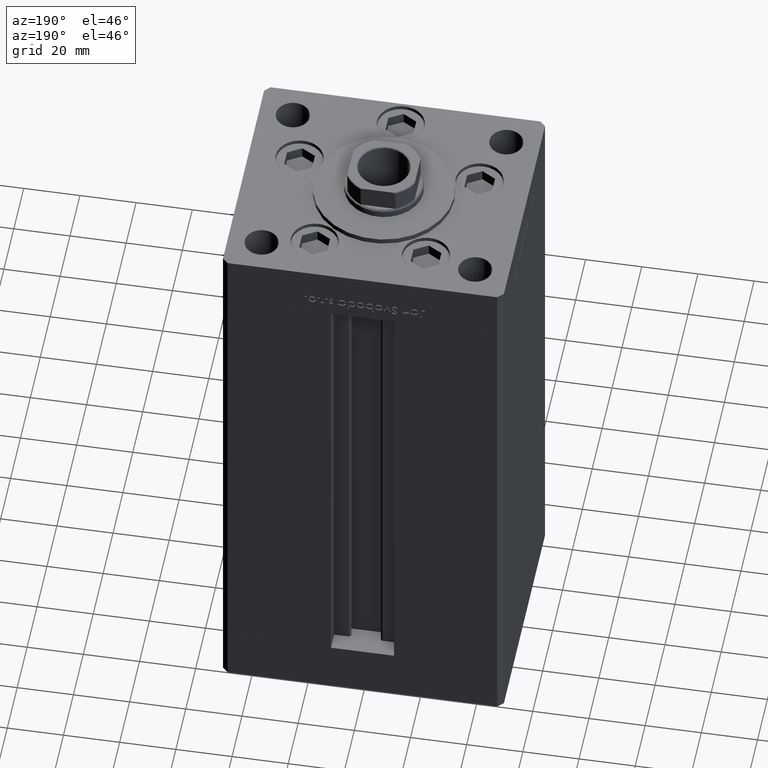
[diagram: clean part render]
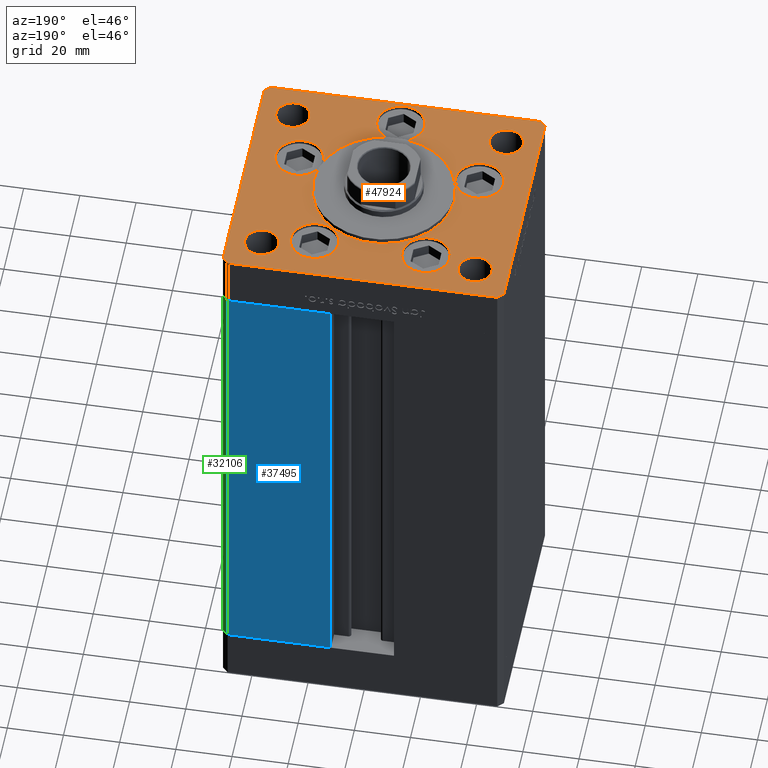
[diagram: same view with three faces highlighted in distinct colors, each labeled with its STEP entity id]
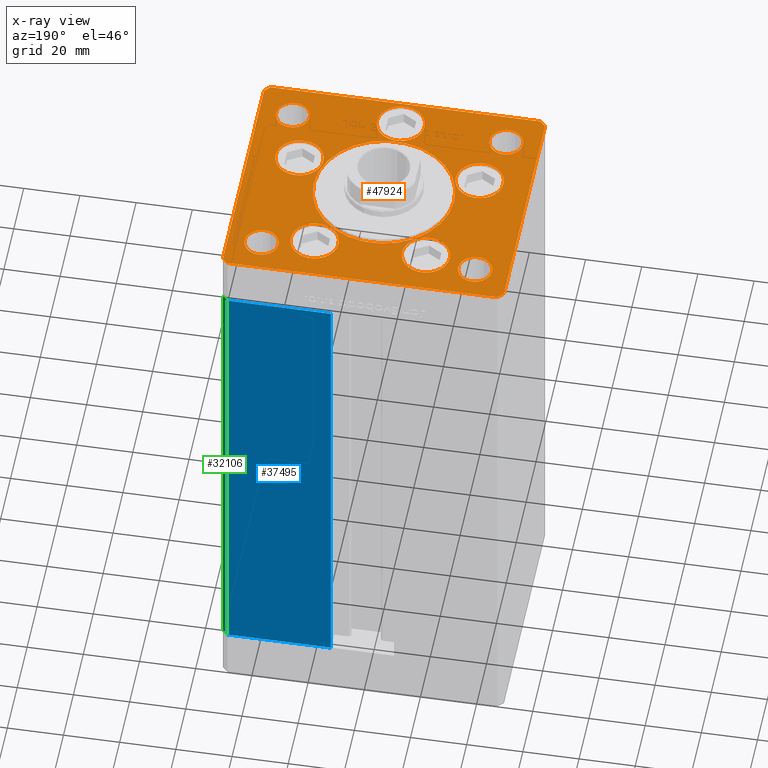
[diagram: x-ray of the same camera — body ghosted, the three highlighted faces saturated]
A machine part, auxiliary view with three faces highlighted in distinct colors.
The next image is the same camera in x-ray (body ghosted, the three faces saturated) — at least one of them is partly hidden behind the body in this view.
Their STEP definitions:

[orange] entity #47924 — the highlighted planar face has unit normal (0, 0, 1).
#397 = CARTESIAN_POINT ( 'NONE',  ( 44.00000000000000000, 31.50000000000000000, 0.000000000000000000 ) ) ;
#426 = EDGE_CURVE ( 'NONE', #8776, #39235, #8271, .T. ) ;
#605 = EDGE_CURVE ( 'NONE', #35790, #5081, #27096, .T. ) ;
#942 = ORIENTED_EDGE ( 'NONE', *, *, #26885, .T. ) ;
#1023 = ORIENTED_EDGE ( 'NONE', *, *, #39851, .T. ) ;
#1164 = VERTEX_POINT ( 'NONE', #9044 ) ;
#1406 = ORIENTED_EDGE ( 'NONE', *, *, #29473, .F. ) ;
#1708 = ORIENTED_EDGE ( 'NONE', *, *, #426, .F. ) ;
#1932 = CIRCLE ( 'NONE', #45741, 8.500000000000000000 ) ;
#2386 = CARTESIAN_POINT ( 'NONE',  ( -8.500000000000000000, -34.00000000000000000, 0.000000000000000000 ) ) ;
#2657 = CARTESIAN_POINT ( 'NONE',  ( -19.82068048781374969, 27.62499999999998934, 0.000000000000000000 ) ) ;
#2736 = CARTESIAN_POINT ( 'NONE',  ( 38.00000000000000711, -31.50000000000000711, 0.000000000000000000 ) ) ;
#3000 = CIRCLE ( 'NONE', #23226, 8.500000000000000000 ) ;
#3454 = CARTESIAN_POINT ( 'NONE',  ( -32.00000000000000000, -31.50000000000000711, 0.000000000000000000 ) ) ;
#3474 = AXIS2_PLACEMENT_3D ( 'NONE', #51333, #15696, #47380 ) ;
#3620 = FACE_BOUND ( 'NONE', #10200, .T. ) ;
#4100 = ORIENTED_EDGE ( 'NONE', *, *, #5937, .F. ) ;
#4367 = CARTESIAN_POINT ( 'NONE',  ( -40.55550741379015989, -11.33333333333332682, 0.000000000000000000 ) ) ;
#4425 = CARTESIAN_POINT ( 'NONE',  ( 50.00000000000000000, -41.49999999999992895, 0.000000000000000000 ) ) ;
#4560 = ORIENTED_EDGE ( 'NONE', *, *, #34063, .F. ) ;
#4686 = VERTEX_POINT ( 'NONE', #43376 ) ;
#4774 = CARTESIAN_POINT ( 'NONE',  ( -28.32068048781375325, 27.62499999999998934, 0.000000000000000000 ) ) ;
#5021 = DIRECTION ( 'NONE',  ( 0.000000000000000000, 1.000000000000000000, 0.000000000000000000 ) ) ;
#5081 = VERTEX_POINT ( 'NONE', #43831 ) ;
#5084 = CARTESIAN_POINT ( 'NONE',  ( -48.00000000000000711, -43.50000000000002842, 0.000000000000000000 ) ) ;
#5331 = VECTOR ( 'NONE', #21126, 1000.000000000000114 ) ;
#5367 = AXIS2_PLACEMENT_3D ( 'NONE', #21654, #5823, #9774 ) ;
#5469 = CARTESIAN_POINT ( 'NONE',  ( -50.00000000000000711, 41.49999999999999289, 0.000000000000000000 ) ) ;
#5823 = DIRECTION ( 'NONE',  ( 0.000000000000000000, 0.000000000000000000, 1.000000000000000000 ) ) ;
#5937 = EDGE_CURVE ( 'NONE', #4686, #31064, #30321, .T. ) ;
#6008 = DIRECTION ( 'NONE',  ( 1.000000000000000000, 0.000000000000000000, 0.000000000000000000 ) ) ;
#6073 = CARTESIAN_POINT ( 'NONE',  ( -11.32068048781375147, 27.62499999999998934, 0.000000000000000000 ) ) ;
#6125 = VECTOR ( 'NONE', #22325, 1000.000000000000000 ) ;
#6402 = VERTEX_POINT ( 'NONE', #45296 ) ;
#6717 = DIRECTION ( 'NONE',  ( 0.000000000000000000, 0.000000000000000000, 1.000000000000000000 ) ) ;
#6813 = FACE_OUTER_BOUND ( 'NONE', #49025, .T. ) ;
#7151 = ORIENTED_EDGE ( 'NONE', *, *, #29794, .F. ) ;
#7339 = CARTESIAN_POINT ( 'NONE',  ( -32.05550741379015989, -11.33333333333332860, 0.000000000000000000 ) ) ;
#7480 = EDGE_CURVE ( 'NONE', #19307, #47485, #17734, .T. ) ;
#8271 = CIRCLE ( 'NONE', #22577, 6.000000000000005329 ) ;
#8464 = AXIS2_PLACEMENT_3D ( 'NONE', #29646, #8571, #37587 ) ;
#8571 = DIRECTION ( 'NONE',  ( 0.000000000000000000, 0.000000000000000000, 1.000000000000000000 ) ) ;
#8572 = DIRECTION ( 'NONE',  ( 0.000000000000000000, 0.000000000000000000, 1.000000000000000000 ) ) ;
#8776 = VERTEX_POINT ( 'NONE', #3454 ) ;
#8980 = LINE ( 'NONE', #41167, #13126 ) ;
#9007 = CIRCLE ( 'NONE', #30039, 25.00000000000000000 ) ;
#9044 = CARTESIAN_POINT ( 'NONE',  ( -48.00000000000000711, -43.50000000000002842, 0.000000000000000000 ) ) ;
#9347 = CARTESIAN_POINT ( 'NONE',  ( 28.32068048781375325, 27.62499999999998934, 0.000000000000000000 ) ) ;
#9378 = CARTESIAN_POINT ( 'NONE',  ( -38.00000000000000000, 31.50000000000000000, 0.000000000000000000 ) ) ;
#9726 = ORIENTED_EDGE ( 'NONE', *, *, #49720, .F. ) ;
#9774 = DIRECTION ( 'NONE',  ( 1.000000000000000000, 0.000000000000000000, 0.000000000000000000 ) ) ;
#10160 = CARTESIAN_POINT ( 'NONE',  ( 38.00000000000000000, 31.50000000000000000, 0.000000000000000000 ) ) ;
#10200 = EDGE_LOOP ( 'NONE', ( #4560, #24324 ) ) ;
#10311 = CARTESIAN_POINT ( 'NONE',  ( 32.00000000000000000, -31.50000000000000711, 0.000000000000000000 ) ) ;
#10320 = ORIENTED_EDGE ( 'NONE', *, *, #14500, .F. ) ;
#10410 = DIRECTION ( 'NONE',  ( -0.000000000000000000, -0.000000000000000000, -1.000000000000000000 ) ) ;
#10599 = DIRECTION ( 'NONE',  ( 1.000000000000000000, 0.000000000000000000, 0.000000000000000000 ) ) ;
#10663 = CARTESIAN_POINT ( 'NONE',  ( 38.00000000000000711, -31.50000000000000711, 0.000000000000000000 ) ) ;
#10756 = FACE_BOUND ( 'NONE', #51179, .T. ) ;
#10787 = VECTOR ( 'NONE', #34773, 999.9999999999998863 ) ;
#11145 = DIRECTION ( 'NONE',  ( 1.000000000000000000, 0.000000000000000000, 0.000000000000000000 ) ) ;
#11167 = DIRECTION ( 'NONE',  ( 0.000000000000000000, 0.000000000000000000, 1.000000000000000000 ) ) ;
#11375 = VERTEX_POINT ( 'NONE', #17781 ) ;
#11472 = CARTESIAN_POINT ( 'NONE',  ( -25.00000000000000000, -6.938893903907228378E-15, 0.000000000000000000 ) ) ;
#12034 = ORIENTED_EDGE ( 'NONE', *, *, #23094, .F. ) ;
#12067 = EDGE_CURVE ( 'NONE', #17550, #37522, #24569, .T. ) ;
#12168 = CARTESIAN_POINT ( 'NONE',  ( 19.82068048781374969, 27.62499999999998934, 0.000000000000000000 ) ) ;
#12187 = VECTOR ( 'NONE', #18286, 1000.000000000000000 ) ;
#12358 = CIRCLE ( 'NONE', #41891, 8.500000000000000000 ) ;
#12631 = DIRECTION ( 'NONE',  ( -1.000000000000000000, 0.000000000000000000, 0.000000000000000000 ) ) ;
#12789 = CARTESIAN_POINT ( 'NONE',  ( -50.00000000000000711, 41.49999999999999289, 0.000000000000000000 ) ) ;
#13062 = CIRCLE ( 'NONE', #49266, 8.500000000000000000 ) ;
#13126 = VECTOR ( 'NONE', #5021, 1000.000000000000000 ) ;
#14005 = ORIENTED_EDGE ( 'NONE', *, *, #27210, .F. ) ;
#14013 = ORIENTED_EDGE ( 'NONE', *, *, #38078, .F. ) ;
#14500 = EDGE_CURVE ( 'NONE', #21402, #25146, #37202, .T. ) ;
#14617 = CARTESIAN_POINT ( 'NONE',  ( -38.00000000000000711, -31.50000000000000711, 0.000000000000000000 ) ) ;
#14717 = FACE_BOUND ( 'NONE', #49700, .T. ) ;
#14916 = CARTESIAN_POINT ( 'NONE',  ( 11.32068048781375147, 27.62499999999998934, 0.000000000000000000 ) ) ;
#14919 = VERTEX_POINT ( 'NONE', #35246 ) ;
#14968 = DIRECTION ( 'NONE',  ( -0.000000000000000000, 0.000000000000000000, 1.000000000000000000 ) ) ;
#15421 = CIRCLE ( 'NONE', #38165, 5.999999999999998224 ) ;
#15455 = CIRCLE ( 'NONE', #25586, 8.500000000000000000 ) ;
#15465 = ORIENTED_EDGE ( 'NONE', *, *, #30924, .T. ) ;
#15634 = DIRECTION ( 'NONE',  ( 1.000000000000000000, 0.000000000000000000, 0.000000000000000000 ) ) ;
#15649 = CARTESIAN_POINT ( 'NONE',  ( -44.00000000000001421, -31.50000000000000711, 0.000000000000000000 ) ) ;
#15696 = DIRECTION ( 'NONE',  ( 0.000000000000000000, 0.000000000000000000, 1.000000000000000000 ) ) ;
#16041 = EDGE_LOOP ( 'NONE', ( #4100, #46380 ) ) ;
#16136 = CARTESIAN_POINT ( 'NONE',  ( -50.00000000000000000, -41.50000000000004263, 0.000000000000000000 ) ) ;
#16290 = LINE ( 'NONE', #47517, #41054 ) ;
#16298 = CIRCLE ( 'NONE', #50022, 6.000000000000005329 ) ;
#17174 = VECTOR ( 'NONE', #49297, 1000.000000000000000 ) ;
#17346 = DIRECTION ( 'NONE',  ( 0.000000000000000000, 0.000000000000000000, 1.000000000000000000 ) ) ;
#17540 = ORIENTED_EDGE ( 'NONE', *, *, #21993, .T. ) ;
#17550 = VERTEX_POINT ( 'NONE', #10311 ) ;
#17734 = CIRCLE ( 'NONE', #8464, 25.00000000000000000 ) ;
#17781 = CARTESIAN_POINT ( 'NONE',  ( 32.00000000000000000, 31.50000000000000000, 0.000000000000000000 ) ) ;
#18286 = DIRECTION ( 'NONE',  ( -0.7071067811865536790, -0.7071067811865414665, 0.000000000000000000 ) ) ;
#18407 = VERTEX_POINT ( 'NONE', #9347 ) ;
#18715 = AXIS2_PLACEMENT_3D ( 'NONE', #10160, #6717, #33899 ) ;
#18745 = DIRECTION ( 'NONE',  ( 1.000000000000000000, 0.000000000000000000, 0.000000000000000000 ) ) ;
#18823 = DIRECTION ( 'NONE',  ( -1.000000000000000000, 0.000000000000000000, 0.000000000000000000 ) ) ;
#18880 = CARTESIAN_POINT ( 'NONE',  ( 50.00000000000000000, 41.50000000000000711, 0.000000000000000000 ) ) ;
#18939 = FACE_BOUND ( 'NONE', #51908, .T. ) ;
#19202 = VERTEX_POINT ( 'NONE', #14916 ) ;
#19252 = ORIENTED_EDGE ( 'NONE', *, *, #39431, .F. ) ;
#19307 = VERTEX_POINT ( 'NONE', #11472 ) ;
#19533 = ORIENTED_EDGE ( 'NONE', *, *, #605, .T. ) ;
#19675 = DIRECTION ( 'NONE',  ( 1.000000000000000000, 0.000000000000000000, 0.000000000000000000 ) ) ;
#19742 = CARTESIAN_POINT ( 'NONE',  ( 23.55550741379015633, -11.33333333333332682, 0.000000000000000000 ) ) ;
#19892 = VERTEX_POINT ( 'NONE', #19742 ) ;
#20579 = CARTESIAN_POINT ( 'NONE',  ( -38.00000000000000711, -31.50000000000000711, 0.000000000000000000 ) ) ;
#20722 = CARTESIAN_POINT ( 'NONE',  ( 8.500000000000000000, -34.00000000000000000, 0.000000000000000000 ) ) ;
#20839 = EDGE_LOOP ( 'NONE', ( #41932, #14013 ) ) ;
#21024 = VERTEX_POINT ( 'NONE', #30509 ) ;
#21126 = DIRECTION ( 'NONE',  ( 0.7071067811865474617, 0.7071067811865474617, 0.000000000000000000 ) ) ;
#21343 = LINE ( 'NONE', #37688, #17174 ) ;
#21402 = VERTEX_POINT ( 'NONE', #4774 ) ;
#21654 = CARTESIAN_POINT ( 'NONE',  ( 32.05550741379015989, -11.33333333333332860, 0.000000000000000000 ) ) ;
#21990 = EDGE_CURVE ( 'NONE', #47083, #11375, #38947, .T. ) ;
#21993 = EDGE_CURVE ( 'NONE', #37522, #17550, #39771, .T. ) ;
#22325 = DIRECTION ( 'NONE',  ( 8.360113137237620037E-17, -1.000000000000000000, 0.000000000000000000 ) ) ;
#22451 = VERTEX_POINT ( 'NONE', #34229 ) ;
#22577 = AXIS2_PLACEMENT_3D ( 'NONE', #20579, #24522, #11145 ) ;
#22974 = VERTEX_POINT ( 'NONE', #16136 ) ;
#23050 = DIRECTION ( 'NONE',  ( 1.000000000000000000, 0.000000000000000000, 0.000000000000000000 ) ) ;
#23094 = EDGE_CURVE ( 'NONE', #25146, #21402, #1932, .T. ) ;
#23226 = AXIS2_PLACEMENT_3D ( 'NONE', #7339, #50878, #51394 ) ;
#24324 = ORIENTED_EDGE ( 'NONE', *, *, #43571, .F. ) ;
#24522 = DIRECTION ( 'NONE',  ( 0.000000000000000000, 0.000000000000000000, 1.000000000000000000 ) ) ;
#24569 = CIRCLE ( 'NONE', #50594, 6.000000000000005329 ) ;
#24580 = VERTEX_POINT ( 'NONE', #4425 ) ;
#24934 = VERTEX_POINT ( 'NONE', #20722 ) ;
#25074 = LINE ( 'NONE', #41182, #5331 ) ;
#25146 = VERTEX_POINT ( 'NONE', #6073 ) ;
#25586 = AXIS2_PLACEMENT_3D ( 'NONE', #46756, #26934, #10599 ) ;
#25749 = VERTEX_POINT ( 'NONE', #2386 ) ;
#26698 = CARTESIAN_POINT ( 'NONE',  ( -48.00000000000000000, 43.49999999999997158, 0.000000000000000000 ) ) ;
#26794 = CARTESIAN_POINT ( 'NONE',  ( 0.000000000000000000, -6.938893903907228378E-15, 0.000000000000000000 ) ) ;
#26885 = EDGE_CURVE ( 'NONE', #49769, #22974, #46080, .T. ) ;
#26890 = DIRECTION ( 'NONE',  ( 1.000000000000000000, 0.000000000000000000, 0.000000000000000000 ) ) ;
#26903 = DIRECTION ( 'NONE',  ( 0.000000000000000000, 0.000000000000000000, 1.000000000000000000 ) ) ;
#26934 = DIRECTION ( 'NONE',  ( 0.000000000000000000, 0.000000000000000000, 1.000000000000000000 ) ) ;
#26941 = ORIENTED_EDGE ( 'NONE', *, *, #29132, .T. ) ;
#27090 = DIRECTION ( 'NONE',  ( 1.000000000000000000, 0.000000000000000000, 0.000000000000000000 ) ) ;
#27096 = LINE ( 'NONE', #51384, #10787 ) ;
#27166 = ORIENTED_EDGE ( 'NONE', *, *, #36210, .T. ) ;
#27210 = EDGE_CURVE ( 'NONE', #11375, #47083, #37292, .T. ) ;
#27709 = EDGE_CURVE ( 'NONE', #1164, #49162, #29591, .T. ) ;
#28255 = DIRECTION ( 'NONE',  ( 0.000000000000000000, 0.000000000000000000, 1.000000000000000000 ) ) ;
#28697 = EDGE_CURVE ( 'NONE', #49162, #24580, #25074, .T. ) ;
#28841 = AXIS2_PLACEMENT_3D ( 'NONE', #10663, #46048, #50010 ) ;
#29015 = CARTESIAN_POINT ( 'NONE',  ( 44.00000000000001421, -31.50000000000000711, 0.000000000000000000 ) ) ;
#29132 = EDGE_CURVE ( 'NONE', #6402, #21024, #15421, .T. ) ;
#29171 = EDGE_CURVE ( 'NONE', #39235, #8776, #16298, .T. ) ;
#29473 = EDGE_CURVE ( 'NONE', #25749, #24934, #15455, .T. ) ;
#29591 = LINE ( 'NONE', #5084, #49950 ) ;
#29646 = CARTESIAN_POINT ( 'NONE',  ( 0.000000000000000000, -6.938893903907228378E-15, 0.000000000000000000 ) ) ;
#29794 = EDGE_CURVE ( 'NONE', #22451, #19892, #49154, .T. ) ;
#30039 = AXIS2_PLACEMENT_3D ( 'NONE', #26794, #39210, #19675 ) ;
#30091 = CARTESIAN_POINT ( 'NONE',  ( 25.00000000000000000, -3.877276906038844941E-15, 0.000000000000000000 ) ) ;
#30321 = CIRCLE ( 'NONE', #35378, 8.500000000000000000 ) ;
#30509 = CARTESIAN_POINT ( 'NONE',  ( -44.00000000000000000, 31.50000000000000000, 0.000000000000000000 ) ) ;
#30795 = FACE_BOUND ( 'NONE', #16041, .T. ) ;
#30897 = ORIENTED_EDGE ( 'NONE', *, *, #28697, .T. ) ;
#30924 = EDGE_CURVE ( 'NONE', #5081, #14919, #21343, .T. ) ;
#31064 = VERTEX_POINT ( 'NONE', #4367 ) ;
#31570 = FACE_BOUND ( 'NONE', #37240, .T. ) ;
#32686 = CARTESIAN_POINT ( 'NONE',  ( -38.00000000000000000, 31.50000000000000000, 0.000000000000000000 ) ) ;
#33858 = EDGE_CURVE ( 'NONE', #14919, #49769, #43328, .T. ) ;
#33899 = DIRECTION ( 'NONE',  ( 1.000000000000000000, 0.000000000000000000, 0.000000000000000000 ) ) ;
#34063 = EDGE_CURVE ( 'NONE', #18407, #19202, #13062, .T. ) ;
#34229 = CARTESIAN_POINT ( 'NONE',  ( 40.55550741379015989, -11.33333333333332860, 0.000000000000000000 ) ) ;
#34404 = DIRECTION ( 'NONE',  ( -1.000000000000000000, 0.000000000000000000, 0.000000000000000000 ) ) ;
#34767 = FACE_BOUND ( 'NONE', #44095, .T. ) ;
#34773 = DIRECTION ( 'NONE',  ( -0.7071067811865512365, 0.7071067811865439090, 0.000000000000000000 ) ) ;
#35020 = PLANE ( 'NONE',  #37782 ) ;
#35118 = CIRCLE ( 'NONE', #46957, 8.500000000000000000 ) ;
#35246 = CARTESIAN_POINT ( 'NONE',  ( -48.00000000000000000, 43.49999999999997158, 0.000000000000000000 ) ) ;
#35378 = AXIS2_PLACEMENT_3D ( 'NONE', #39050, #42502, #26890 ) ;
#35790 = VERTEX_POINT ( 'NONE', #18880 ) ;
#36210 = EDGE_CURVE ( 'NONE', #24580, #35790, #8980, .T. ) ;
#36713 = DIRECTION ( 'NONE',  ( 0.000000000000000000, 0.000000000000000000, 1.000000000000000000 ) ) ;
#36781 = EDGE_CURVE ( 'NONE', #31064, #4686, #3000, .T. ) ;
#36970 = CIRCLE ( 'NONE', #38666, 8.500000000000000000 ) ;
#36982 = CARTESIAN_POINT ( 'NONE',  ( 19.82068048781374969, 27.62499999999998934, 0.000000000000000000 ) ) ;
#37202 = CIRCLE ( 'NONE', #3474, 8.500000000000000000 ) ;
#37240 = EDGE_LOOP ( 'NONE', ( #26941, #49028 ) ) ;
#37292 = CIRCLE ( 'NONE', #48232, 5.999999999999998224 ) ;
#37522 = VERTEX_POINT ( 'NONE', #29015 ) ;
#37587 = DIRECTION ( 'NONE',  ( 1.000000000000000000, 0.000000000000000000, 0.000000000000000000 ) ) ;
#37688 = CARTESIAN_POINT ( 'NONE',  ( 47.99999999999999289, 43.50000000000000000, 0.000000000000000000 ) ) ;
#37782 = AXIS2_PLACEMENT_3D ( 'NONE', #51120, #14968, #27090 ) ;
#38078 = EDGE_CURVE ( 'NONE', #47485, #19307, #9007, .T. ) ;
#38165 = AXIS2_PLACEMENT_3D ( 'NONE', #9378, #10410, #34404 ) ;
#38371 = CARTESIAN_POINT ( 'NONE',  ( 48.00000000000000711, -43.49999999999992184, 0.000000000000000000 ) ) ;
#38666 = AXIS2_PLACEMENT_3D ( 'NONE', #38694, #17346, #6008 ) ;
#38694 = CARTESIAN_POINT ( 'NONE',  ( 32.05550741379015989, -11.33333333333332860, 0.000000000000000000 ) ) ;
#38815 = ORIENTED_EDGE ( 'NONE', *, *, #29171, .F. ) ;
#38947 = CIRCLE ( 'NONE', #18715, 5.999999999999998224 ) ;
#39050 = CARTESIAN_POINT ( 'NONE',  ( -32.05550741379015989, -11.33333333333332860, 0.000000000000000000 ) ) ;
#39210 = DIRECTION ( 'NONE',  ( 0.000000000000000000, 0.000000000000000000, 1.000000000000000000 ) ) ;
#39235 = VERTEX_POINT ( 'NONE', #15649 ) ;
#39431 = EDGE_CURVE ( 'NONE', #24934, #25749, #35118, .T. ) ;
#39771 = CIRCLE ( 'NONE', #28841, 6.000000000000005329 ) ;
#39851 = EDGE_CURVE ( 'NONE', #22974, #1164, #16290, .T. ) ;
#41052 = AXIS2_PLACEMENT_3D ( 'NONE', #32686, #48524, #12631 ) ;
#41054 = VECTOR ( 'NONE', #43551, 1000.000000000000000 ) ;
#41167 = CARTESIAN_POINT ( 'NONE',  ( 50.00000000000000000, -41.49999999999992895, 0.000000000000000000 ) ) ;
#41182 = CARTESIAN_POINT ( 'NONE',  ( 48.00000000000000711, -43.49999999999992184, 0.000000000000000000 ) ) ;
#41781 = EDGE_LOOP ( 'NONE', ( #7151, #9726 ) ) ;
#41891 = AXIS2_PLACEMENT_3D ( 'NONE', #36982, #36713, #43391 ) ;
#41932 = ORIENTED_EDGE ( 'NONE', *, *, #7480, .F. ) ;
#42171 = ORIENTED_EDGE ( 'NONE', *, *, #27709, .T. ) ;
#42502 = DIRECTION ( 'NONE',  ( 0.000000000000000000, 0.000000000000000000, 1.000000000000000000 ) ) ;
#42627 = ORIENTED_EDGE ( 'NONE', *, *, #12067, .T. ) ;
#43328 = LINE ( 'NONE', #26698, #12187 ) ;
#43376 = CARTESIAN_POINT ( 'NONE',  ( -23.55550741379015989, -11.33333333333332860, 0.000000000000000000 ) ) ;
#43391 = DIRECTION ( 'NONE',  ( 1.000000000000000000, 0.000000000000000000, 0.000000000000000000 ) ) ;
#43551 = DIRECTION ( 'NONE',  ( 0.7071067811865487940, -0.7071067811865463515, 0.000000000000000000 ) ) ;
#43571 = EDGE_CURVE ( 'NONE', #19202, #18407, #12358, .T. ) ;
#43831 = CARTESIAN_POINT ( 'NONE',  ( 47.99999999999999289, 43.50000000000000000, 0.000000000000000000 ) ) ;
#43861 = EDGE_CURVE ( 'NONE', #21024, #6402, #49445, .T. ) ;
#44095 = EDGE_LOOP ( 'NONE', ( #12034, #10320 ) ) ;
#44631 = DIRECTION ( 'NONE',  ( 1.000000000000000000, 0.000000000000000000, 0.000000000000000000 ) ) ;
#45296 = CARTESIAN_POINT ( 'NONE',  ( -32.00000000000000000, 31.50000000000000000, 0.000000000000000000 ) ) ;
#45713 = DIRECTION ( 'NONE',  ( 1.000000000000000000, 1.156482317317871331E-15, 0.000000000000000000 ) ) ;
#45741 = AXIS2_PLACEMENT_3D ( 'NONE', #2657, #26903, #18745 ) ;
#46048 = DIRECTION ( 'NONE',  ( -0.000000000000000000, -0.000000000000000000, -1.000000000000000000 ) ) ;
#46080 = LINE ( 'NONE', #5469, #6125 ) ;
#46380 = ORIENTED_EDGE ( 'NONE', *, *, #36781, .F. ) ;
#46572 = EDGE_LOOP ( 'NONE', ( #49499, #14005 ) ) ;
#46756 = CARTESIAN_POINT ( 'NONE',  ( 0.000000000000000000, -34.00000000000000000, 0.000000000000000000 ) ) ;
#46898 = ORIENTED_EDGE ( 'NONE', *, *, #33858, .T. ) ;
#46911 = FACE_BOUND ( 'NONE', #46572, .T. ) ;
#46957 = AXIS2_PLACEMENT_3D ( 'NONE', #48873, #52050, #15634 ) ;
#47083 = VERTEX_POINT ( 'NONE', #397 ) ;
#47380 = DIRECTION ( 'NONE',  ( 1.000000000000000000, 0.000000000000000000, 0.000000000000000000 ) ) ;
#47485 = VERTEX_POINT ( 'NONE', #30091 ) ;
#47517 = CARTESIAN_POINT ( 'NONE',  ( -50.00000000000000000, -41.50000000000004263, 0.000000000000000000 ) ) ;
#47924 = ADVANCED_FACE ( 'NONE', ( #51639, #34767, #3620, #50865, #14717, #30795, #31570, #46911, #10756, #6813, #18939 ), #35020, .T. ) ;
#48232 = AXIS2_PLACEMENT_3D ( 'NONE', #48402, #8572, #49196 ) ;
#48402 = CARTESIAN_POINT ( 'NONE',  ( 38.00000000000000000, 31.50000000000000000, 0.000000000000000000 ) ) ;
#48524 = DIRECTION ( 'NONE',  ( -0.000000000000000000, -0.000000000000000000, -1.000000000000000000 ) ) ;
#48873 = CARTESIAN_POINT ( 'NONE',  ( 0.000000000000000000, -34.00000000000000000, 0.000000000000000000 ) ) ;
#49025 = EDGE_LOOP ( 'NONE', ( #1023, #42171, #30897, #27166, #19533, #15465, #46898, #942 ) ) ;
#49028 = ORIENTED_EDGE ( 'NONE', *, *, #43861, .T. ) ;
#49154 = CIRCLE ( 'NONE', #5367, 8.500000000000000000 ) ;
#49162 = VERTEX_POINT ( 'NONE', #38371 ) ;
#49196 = DIRECTION ( 'NONE',  ( 1.000000000000000000, 0.000000000000000000, 0.000000000000000000 ) ) ;
#49266 = AXIS2_PLACEMENT_3D ( 'NONE', #12168, #28255, #44631 ) ;
#49297 = DIRECTION ( 'NONE',  ( -1.000000000000000000, -2.891205793294678326E-16, 0.000000000000000000 ) ) ;
#49445 = CIRCLE ( 'NONE', #41052, 5.999999999999998224 ) ;
#49499 = ORIENTED_EDGE ( 'NONE', *, *, #21990, .F. ) ;
#49700 = EDGE_LOOP ( 'NONE', ( #19252, #1406 ) ) ;
#49720 = EDGE_CURVE ( 'NONE', #19892, #22451, #36970, .T. ) ;
#49769 = VERTEX_POINT ( 'NONE', #12789 ) ;
#49950 = VECTOR ( 'NONE', #45713, 1000.000000000000000 ) ;
#50010 = DIRECTION ( 'NONE',  ( -1.000000000000000000, 0.000000000000000000, 0.000000000000000000 ) ) ;
#50022 = AXIS2_PLACEMENT_3D ( 'NONE', #14617, #11167, #23050 ) ;
#50594 = AXIS2_PLACEMENT_3D ( 'NONE', #2736, #51527, #18823 ) ;
#50865 = FACE_BOUND ( 'NONE', #41781, .T. ) ;
#50878 = DIRECTION ( 'NONE',  ( 0.000000000000000000, 0.000000000000000000, 1.000000000000000000 ) ) ;
#51120 = CARTESIAN_POINT ( 'NONE',  ( 0.000000000000000000, 0.000000000000000000, 0.000000000000000000 ) ) ;
#51179 = EDGE_LOOP ( 'NONE', ( #1708, #38815 ) ) ;
#51333 = CARTESIAN_POINT ( 'NONE',  ( -19.82068048781374969, 27.62499999999998934, 0.000000000000000000 ) ) ;
#51384 = CARTESIAN_POINT ( 'NONE',  ( 50.00000000000000000, 41.50000000000000711, 0.000000000000000000 ) ) ;
#51394 = DIRECTION ( 'NONE',  ( 1.000000000000000000, 0.000000000000000000, 0.000000000000000000 ) ) ;
#51527 = DIRECTION ( 'NONE',  ( -0.000000000000000000, -0.000000000000000000, -1.000000000000000000 ) ) ;
#51639 = FACE_BOUND ( 'NONE', #20839, .T. ) ;
#51908 = EDGE_LOOP ( 'NONE', ( #17540, #42627 ) ) ;
#52050 = DIRECTION ( 'NONE',  ( 0.000000000000000000, 0.000000000000000000, 1.000000000000000000 ) ) ;

[blue] entity #37495 — the highlighted planar face has unit normal (0, -1, 0).
#789 = VECTOR ( 'NONE', #12099, 1000.000000000000000 ) ;
#806 = PLANE ( 'NONE',  #19048 ) ;
#3423 = CARTESIAN_POINT ( 'NONE',  ( 11.24999999999999822, 43.50000000000000000, 0.000000000000000000 ) ) ;
#3640 = EDGE_CURVE ( 'NONE', #23854, #21509, #48250, .T. ) ;
#4145 = LINE ( 'NONE', #20514, #45136 ) ;
#4418 = DIRECTION ( 'NONE',  ( -0.000000000000000000, -0.000000000000000000, -1.000000000000000000 ) ) ;
#4467 = CARTESIAN_POINT ( 'NONE',  ( -11.24999999999999822, 43.50000000000000000, 168.5000000000000000 ) ) ;
#4708 = VECTOR ( 'NONE', #5728, 1000.000000000000000 ) ;
#5296 = DIRECTION ( 'NONE',  ( 0.000000000000000000, -1.000000000000000000, 0.000000000000000000 ) ) ;
#5728 = DIRECTION ( 'NONE',  ( -1.000000000000000000, 0.000000000000000000, 0.000000000000000000 ) ) ;
#9162 = CARTESIAN_POINT ( 'NONE',  ( 48.00000000000000711, 43.50000000000000000, 0.000000000000000000 ) ) ;
#10537 = EDGE_CURVE ( 'NONE', #14641, #23854, #20043, .T. ) ;
#12099 = DIRECTION ( 'NONE',  ( 1.000000000000000000, 0.000000000000000000, 0.000000000000000000 ) ) ;
#14641 = VERTEX_POINT ( 'NONE', #35694 ) ;
#16570 = CARTESIAN_POINT ( 'NONE',  ( 48.00000000000000711, 43.50000000000000000, 168.5000000000000000 ) ) ;
#16886 = CARTESIAN_POINT ( 'NONE',  ( -11.24999999999999822, 43.50000000000000000, 168.5000000000000000 ) ) ;
#19048 = AXIS2_PLACEMENT_3D ( 'NONE', #16886, #5296, #49604 ) ;
#20043 = LINE ( 'NONE', #3423, #43100 ) ;
#20514 = CARTESIAN_POINT ( 'NONE',  ( 48.00000000000000711, 43.50000000000000000, 168.5000000000000000 ) ) ;
#21509 = VERTEX_POINT ( 'NONE', #16570 ) ;
#21562 = LINE ( 'NONE', #41874, #4708 ) ;
#23854 = VERTEX_POINT ( 'NONE', #32762 ) ;
#26872 = VERTEX_POINT ( 'NONE', #9162 ) ;
#27939 = DIRECTION ( 'NONE',  ( -0.000000000000000000, -0.000000000000000000, 1.000000000000000000 ) ) ;
#32315 = ORIENTED_EDGE ( 'NONE', *, *, #35457, .T. ) ;
#32762 = CARTESIAN_POINT ( 'NONE',  ( 11.24999999999999112, 43.50000000000000000, 168.5000000000000000 ) ) ;
#35457 = EDGE_CURVE ( 'NONE', #21509, #26872, #4145, .T. ) ;
#35694 = CARTESIAN_POINT ( 'NONE',  ( 11.24999999999999822, 43.50000000000000000, 0.000000000000000000 ) ) ;
#35747 = EDGE_CURVE ( 'NONE', #26872, #14641, #21562, .T. ) ;
#36924 = ORIENTED_EDGE ( 'NONE', *, *, #35747, .T. ) ;
#37495 = ADVANCED_FACE ( 'NONE', ( #44866 ), #806, .F. ) ;
#41874 = CARTESIAN_POINT ( 'NONE',  ( -11.24999999999999822, 43.50000000000000000, 0.000000000000000000 ) ) ;
#43100 = VECTOR ( 'NONE', #27939, 1000.000000000000000 ) ;
#44866 = FACE_OUTER_BOUND ( 'NONE', #50607, .T. ) ;
#45136 = VECTOR ( 'NONE', #4418, 1000.000000000000000 ) ;
#47275 = ORIENTED_EDGE ( 'NONE', *, *, #10537, .T. ) ;
#48250 = LINE ( 'NONE', #4467, #789 ) ;
#49604 = DIRECTION ( 'NONE',  ( 0.000000000000000000, -0.000000000000000000, -1.000000000000000000 ) ) ;
#50253 = ORIENTED_EDGE ( 'NONE', *, *, #3640, .T. ) ;
#50607 = EDGE_LOOP ( 'NONE', ( #36924, #47275, #50253, #32315 ) ) ;

[green] entity #32106 — the highlighted planar face has unit normal (0.7071, 0.7071, 0).
#1479 = DIRECTION ( 'NONE',  ( -0.7071067811865487940, 0.7071067811865463515, 0.000000000000000000 ) ) ;
#3541 = LINE ( 'NONE', #19639, #34083 ) ;
#4145 = LINE ( 'NONE', #20514, #45136 ) ;
#4418 = DIRECTION ( 'NONE',  ( -0.000000000000000000, -0.000000000000000000, -1.000000000000000000 ) ) ;
#4914 = FACE_OUTER_BOUND ( 'NONE', #18087, .T. ) ;
#7194 = VERTEX_POINT ( 'NONE', #30224 ) ;
#9162 = CARTESIAN_POINT ( 'NONE',  ( 48.00000000000000711, 43.50000000000000000, 0.000000000000000000 ) ) ;
#10757 = LINE ( 'NONE', #26834, #13199 ) ;
#11306 = ORIENTED_EDGE ( 'NONE', *, *, #35457, .F. ) ;
#13199 = VECTOR ( 'NONE', #26076, 1000.000000000000000 ) ;
#13977 = DIRECTION ( 'NONE',  ( 0.7071067811865487940, -0.7071067811865463515, 0.000000000000000000 ) ) ;
#16570 = CARTESIAN_POINT ( 'NONE',  ( 48.00000000000000711, 43.50000000000000000, 168.5000000000000000 ) ) ;
#18087 = EDGE_LOOP ( 'NONE', ( #32743, #11306, #49648, #25030 ) ) ;
#19639 = CARTESIAN_POINT ( 'NONE',  ( 50.00000000000001421, 41.49999999999999289, 168.5000000000000000 ) ) ;
#20514 = CARTESIAN_POINT ( 'NONE',  ( 48.00000000000000711, 43.50000000000000000, 168.5000000000000000 ) ) ;
#20719 = EDGE_CURVE ( 'NONE', #21509, #7194, #30826, .T. ) ;
#21005 = PLANE ( 'NONE',  #39132 ) ;
#21509 = VERTEX_POINT ( 'NONE', #16570 ) ;
#25030 = ORIENTED_EDGE ( 'NONE', *, *, #33040, .T. ) ;
#26076 = DIRECTION ( 'NONE',  ( 0.7071067811865487940, -0.7071067811865463515, 0.000000000000000000 ) ) ;
#26834 = CARTESIAN_POINT ( 'NONE',  ( 48.00000000000000711, 43.50000000000000000, 0.000000000000000000 ) ) ;
#26872 = VERTEX_POINT ( 'NONE', #9162 ) ;
#30224 = CARTESIAN_POINT ( 'NONE',  ( 50.00000000000001421, 41.49999999999999289, 168.5000000000000000 ) ) ;
#30826 = LINE ( 'NONE', #46944, #38271 ) ;
#32106 = ADVANCED_FACE ( 'NONE', ( #4914 ), #21005, .T. ) ;
#32743 = ORIENTED_EDGE ( 'NONE', *, *, #43964, .F. ) ;
#33040 = EDGE_CURVE ( 'NONE', #7194, #46416, #3541, .T. ) ;
#34083 = VECTOR ( 'NONE', #35723, 1000.000000000000000 ) ;
#35457 = EDGE_CURVE ( 'NONE', #21509, #26872, #4145, .T. ) ;
#35678 = CARTESIAN_POINT ( 'NONE',  ( 50.00000000000001421, 41.49999999999999289, 0.000000000000000000 ) ) ;
#35723 = DIRECTION ( 'NONE',  ( -0.000000000000000000, -0.000000000000000000, -1.000000000000000000 ) ) ;
#37096 = DIRECTION ( 'NONE',  ( 0.7071067811865463515, 0.7071067811865487940, -0.000000000000000000 ) ) ;
#38271 = VECTOR ( 'NONE', #13977, 1000.000000000000000 ) ;
#39132 = AXIS2_PLACEMENT_3D ( 'NONE', #48436, #37096, #1479 ) ;
#43964 = EDGE_CURVE ( 'NONE', #26872, #46416, #10757, .T. ) ;
#45136 = VECTOR ( 'NONE', #4418, 1000.000000000000000 ) ;
#46416 = VERTEX_POINT ( 'NONE', #35678 ) ;
#46944 = CARTESIAN_POINT ( 'NONE',  ( 48.00000000000000711, 43.50000000000000000, 168.5000000000000000 ) ) ;
#48436 = CARTESIAN_POINT ( 'NONE',  ( 48.00000000000000711, 43.50000000000000000, 168.5000000000000000 ) ) ;
#49648 = ORIENTED_EDGE ( 'NONE', *, *, #20719, .T. ) ;